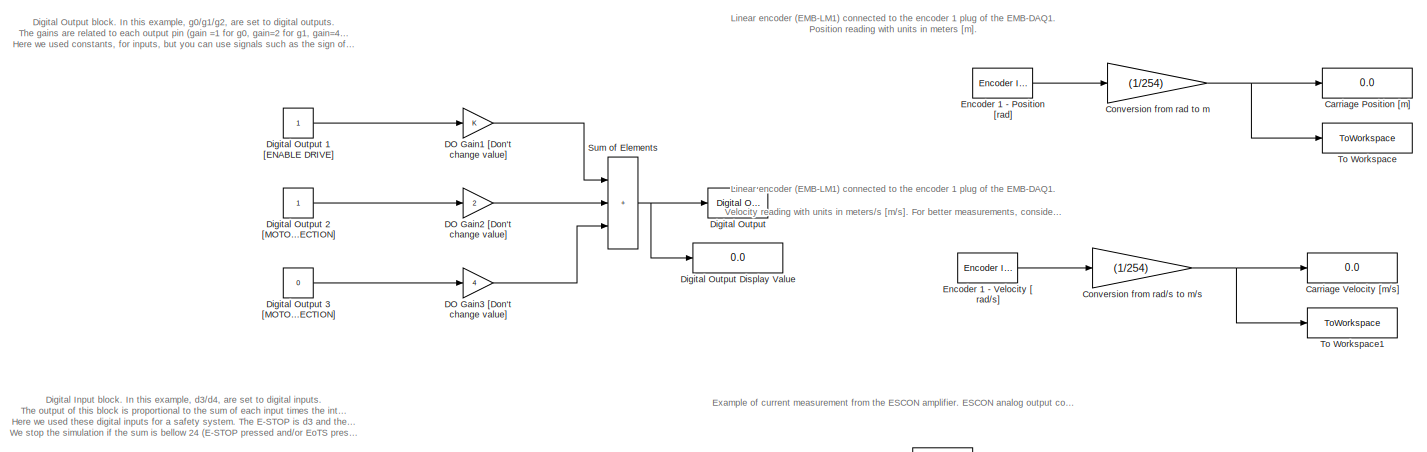
[diagram: root canvas - part 1/2, full width, top band]
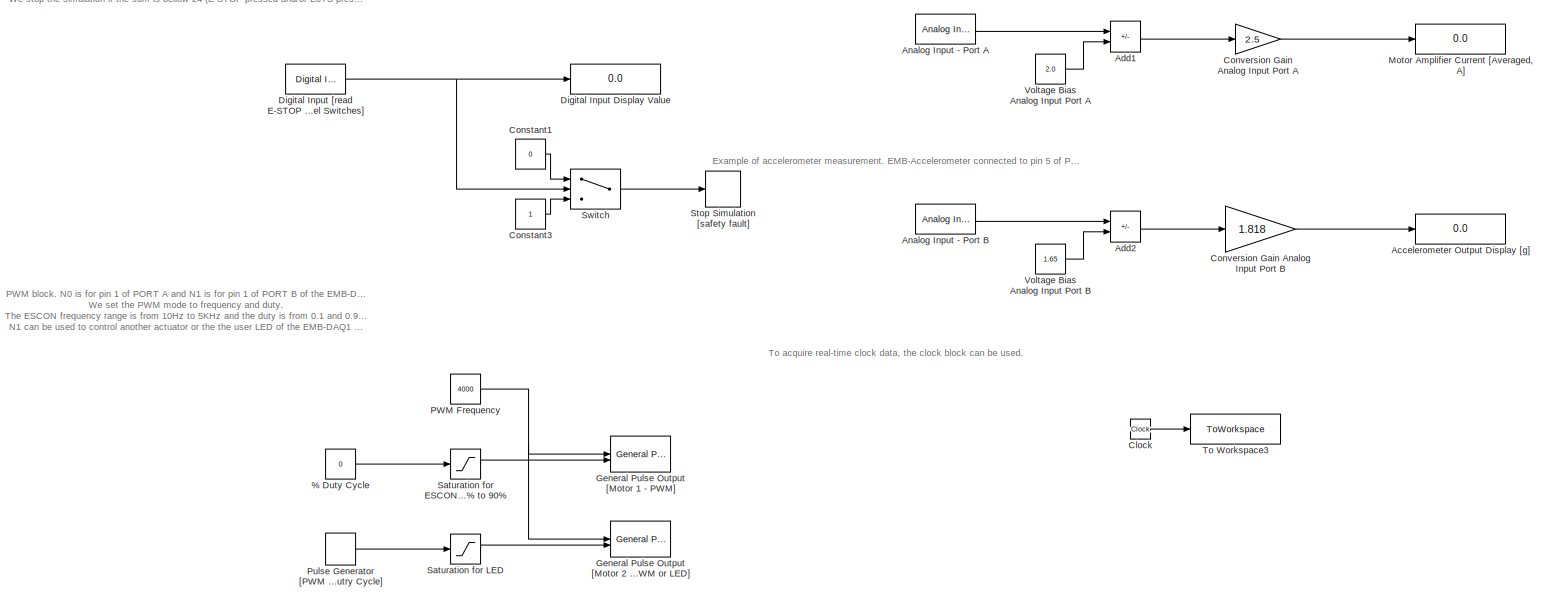
[diagram: root canvas - part 2/2, full width, bottom band]
MODEL slx_29e6d25a9eae
KIND model
CONFIG AbsTol = auto
CONFIG EnableMultiTasking = on
CONFIG FixedStep = T
CONFIG MaxStep = auto
CONFIG MinStep = auto
CONFIG RelTol = 1e-3
CONFIG SampleTimeConstraint = Unconstrained
CONFIG SolverName = ode5
CONFIG StartTime = 0.0
CONFIG StopTime = S
BLOCK [Constant] % Duty Cycle
  Value = 0
BLOCK [Display] Accelerometer Output Display [g]
  Decimation = 1
BLOCK [Sum] Add1
  IconShape = rectangular
  Inputs = +-
BLOCK [Sum] Add2
  IconShape = rectangular
  Inputs = +-
BLOCK [Reference] Analog Input - Port A  REF=easyio/Analog Input
  SourceBlock = easyio/Analog Input
  SourceProductName = Easyio
  SourceType = Analog Input
BLOCK [Reference] Analog Input - Port B  REF=easyio/Analog Input
  SourceBlock = easyio/Analog Input
  SourceProductName = Easyio
  SourceType = Analog Input
BLOCK [Display] Carriage Position [m]
  Decimation = 1
BLOCK [Display] Carriage Velocity [m//s]
  Decimation = 1
BLOCK [Clock] Clock
BLOCK [Constant] Constant1
  Value = 0
BLOCK [Constant] Constant3
BLOCK [Gain] Conversion Gain Analog Input Port A
  Gain = 2.5
BLOCK [Gain] Conversion Gain Analog Input Port B
  Gain = 1.818
BLOCK [Gain] Conversion from rad to m
  Gain = (1/254)
BLOCK [Gain] Conversion from rad//s to m//s
  Gain = (1/254)
BLOCK [Gain] DO Gain1 [Don't change value]
BLOCK [Gain] DO Gain2 [Don't change value]
  Gain = 2
BLOCK [Gain] DO Gain3 [Don't change value]
  Gain = 4
BLOCK [Display] Digital Input Display Value
  Decimation = 1
BLOCK [Reference] Digital Input [read E-STOP and End of Travel Switches]  REF=easyio/Digital Input
  SourceBlock = easyio/Digital Input
  SourceProductName = Easyio
  SourceType = Digital Input
BLOCK [Reference] Digital Output  REF=easyio/Digital Output
  SourceBlock = easyio/Digital Output
  SourceProductName = Easyio
  SourceType = Digital Output
BLOCK [Constant] Digital Output 1 [ENABLE DRIVE]
BLOCK [Constant] Digital Output 2 [MOTOR 1 DIRECTION]
BLOCK [Constant] Digital Output 3 [MOTOR 2 DIRECTION]
  Value = 0
BLOCK [Display] Digital Output Display Value
  Decimation = 1
BLOCK [Reference] Encoder 1 - Position [rad]  REF=easyio/Encoder Input
  SourceBlock = easyio/Encoder Input
  SourceProductName = Easyio
  SourceType = Encoder Input
BLOCK [Reference] Encoder 1 - Velocity [ rad//s]  REF=easyio/Encoder Input
  SourceBlock = easyio/Encoder Input
  SourceProductName = Easyio
  SourceType = Encoder Input
BLOCK [Reference] General Pulse Output [Motor 1 - PWM]  REF=easyio/General Pulse Output
  SourceBlock = easyio/General Pulse Output
  SourceProductName = Easyio
  SourceType = General Pulse Output
BLOCK [Reference] General Pulse Output [Motor 2 - PWM or LED]  REF=easyio/General Pulse Output
  SourceBlock = easyio/General Pulse Output
  SourceProductName = Easyio
  SourceType = General Pulse Output
BLOCK [Display] Motor Amplifier Current [Averaged, A]
  Decimation = 1
BLOCK [Constant] PWM Frequency
  Value = 4000
BLOCK [DiscretePulseGenerator] Pulse Generator [PWM % Dutry Cycle]
  Period = 0.4
  PulseType = Time based
  PulseWidth = 50
BLOCK [Saturate] Saturation for ESCON 10% to 90%
  LowerLimit = 0.1
  UpperLimit = 0.9
BLOCK [Saturate] Saturation for LED
  LowerLimit = 0
  UpperLimit = 1
BLOCK [Stop] Stop Simulation [safety fault]
BLOCK [Sum] Sum of Elements
  IconShape = rectangular
  Inputs = +++
BLOCK [Switch] Switch
  InputSameDT = off
  SaturateOnIntegerOverflow = off
  Threshold = 24
BLOCK [ToWorkspace] To Workspace
  FixptAsFi = on
  MaxDataPoints = inf
  SampleTime = -1
  VariableName = position
BLOCK [ToWorkspace] To Workspace1
  FixptAsFi = on
  MaxDataPoints = inf
  SampleTime = -1
  VariableName = velocity
BLOCK [ToWorkspace] To Workspace3
  FixptAsFi = on
  MaxDataPoints = inf
  SampleTime = -1
  VariableName = rt_time
BLOCK [Constant] Voltage Bias Analog Input Port A
  Value = 2.0
BLOCK [Constant] Voltage Bias Analog Input Port B
  Value = 1.65
ANNOTATION (root): Digital Input block. In this example, d3/d4, are set to digital inputs. The output of this block is proportional to the sum of each input times the internal gain (8 for d3 and 16 for d4). Here we used these digital inputs for a safety system. The E-STOP is d3 and the end-of-travel switch is d4. We stop the simulation if the sum is bellow 24 (E-STOP pressed and/or EoTS pressed).
ANNOTATION (root): Digital Output block. In this example, g0/g1/g2, are set to digital outputs. The gains are related to each output pin (gain =1 for g0, gain=2 for g1, gain=4 for g2) and the sum is fed to G0 block. Here we used constants, for inputs, but you can use signals such as the sign of a PID controller for motor direction.
ANNOTATION (root): Example of accelerometer measurement. EMB-Accelerometer connected to pin 5 of PORT B (analog in).
ANNOTATION (root): Example of current measurement from the ESCON amplifier. ESCON analog output connected to pin 5 of PORT A (analog in).
ANNOTATION (root): Linear encoder (EMB-LM1) connected to the encoder 1 plug of the EMB-DAQ1. Position reading with units in meters [m].
ANNOTATION (root): Linear encoder (EMB-LM1) connected to the encoder 1 plug of the EMB-DAQ1. Velocity reading with units in meters/s [m/s]. For better measurements, consider using a high-pass filter on the position signal.
ANNOTATION (root): PWM block. N0 is for pin 1 of PORT A and N1 is for pin 1 of PORT B of the EMB-DAQ1. We set the PWM mode to frequency and duty. The ESCON frequency range is from 10Hz to 5KHz and the duty is from 0.1 and 0.9%. N1 can be used to control another actuator or the the user LED of the EMB-DAQ1 (PORT B, pin 1 wired to LED).
ANNOTATION (root): To acquire real-time clock data, the clock block can be used.
LINE % Duty Cycle:1 -> Saturation for ESCON 10% to 90%:1
LINE Add1:1 -> Conversion Gain Analog Input Port A:1
LINE Add2:1 -> Conversion Gain Analog Input Port B:1
LINE Analog Input - Port A:1 -> Add1:1
LINE Analog Input - Port B:1 -> Add2:1
LINE Clock:1 -> To Workspace3:1
LINE Constant1:1 -> Switch:1
LINE Constant3:1 -> Switch:3
LINE Conversion Gain Analog Input Port A:1 -> Motor Amplifier Current [Averaged, A]:1
LINE Conversion Gain Analog Input Port B:1 -> Accelerometer Output Display [g]:1
NET Conversion from rad to m:1 -> Carriage Position [m]:1, To Workspace:1
NET Conversion from rad//s to m//s:1 -> Carriage Velocity [m//s]:1, To Workspace1:1
LINE DO Gain1 [Don't change value]:1 -> Sum of Elements:1
LINE DO Gain2 [Don't change value]:1 -> Sum of Elements:2
LINE DO Gain3 [Don't change value]:1 -> Sum of Elements:3
NET Digital Input [read E-STOP and End of Travel Switches]:1 -> Digital Input Display Value:1, Switch:2
LINE Digital Output 1 [ENABLE DRIVE]:1 -> DO Gain1 [Don't change value]:1
LINE Digital Output 2 [MOTOR 1 DIRECTION]:1 -> DO Gain2 [Don't change value]:1
LINE Digital Output 3 [MOTOR 2 DIRECTION]:1 -> DO Gain3 [Don't change value]:1
LINE Encoder 1 - Position [rad]:1 -> Conversion from rad to m:1
LINE Encoder 1 - Velocity [ rad//s]:1 -> Conversion from rad//s to m//s:1
NET PWM Frequency:1 -> General Pulse Output [Motor 1 - PWM]:1, General Pulse Output [Motor 2 - PWM or LED]:1
LINE Pulse Generator [PWM % Dutry Cycle]:1 -> Saturation for LED:1
LINE Saturation for ESCON 10% to 90%:1 -> General Pulse Output [Motor 1 - PWM]:2
LINE Saturation for LED:1 -> General Pulse Output [Motor 2 - PWM or LED]:2
NET Sum of Elements:1 -> Digital Output Display Value:1, Digital Output:1
LINE Switch:1 -> Stop Simulation [safety fault]:1
LINE Voltage Bias Analog Input Port A:1 -> Add1:2
LINE Voltage Bias Analog Input Port B:1 -> Add2:2
note: NET lines group one-source signal fan-out (src -> all destinations, sorted); 1:1 wires keep LINE
